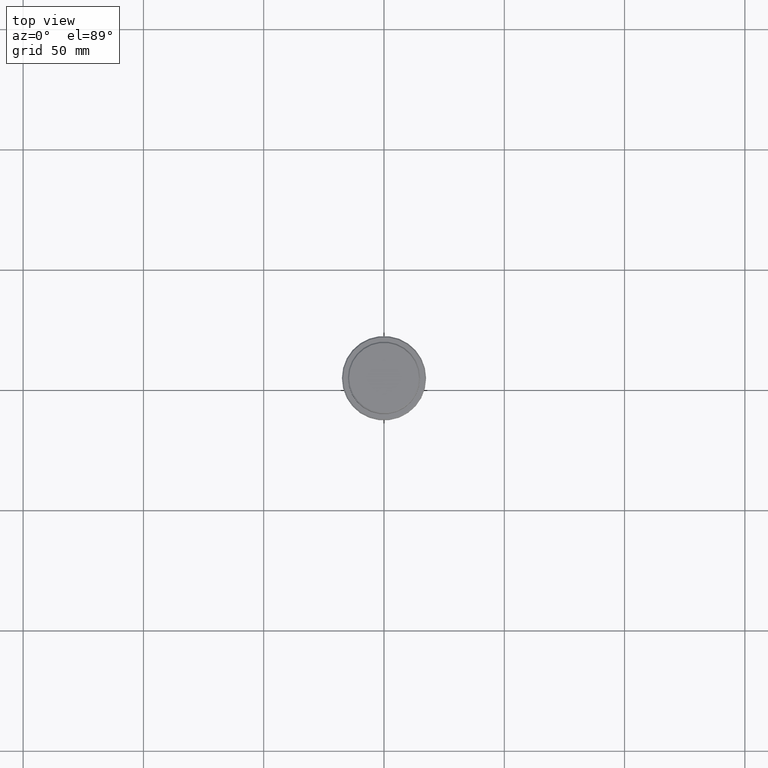
[diagram: clean part render]
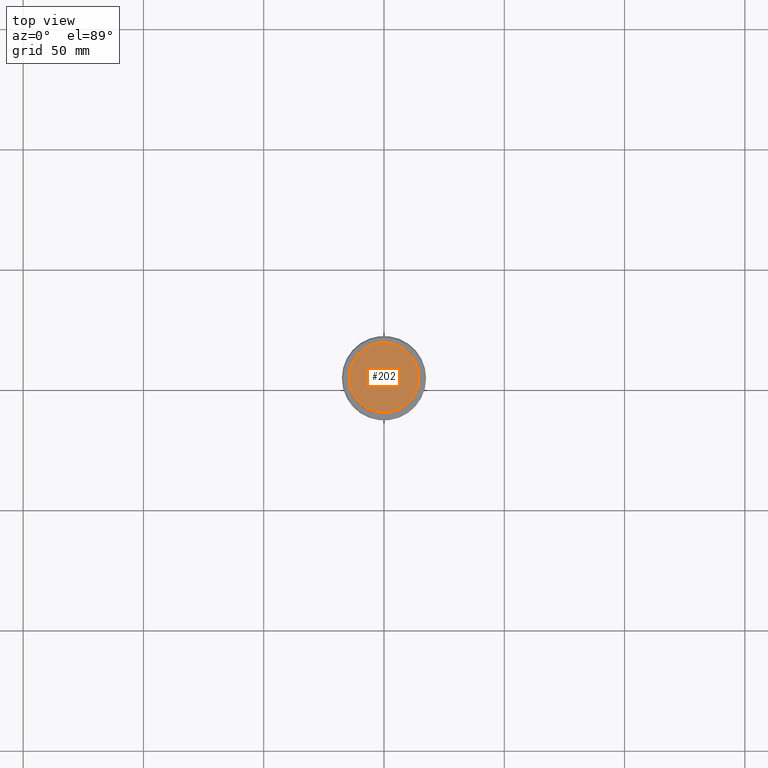
[diagram: same view with one face highlighted and labeled with its STEP entity id]
A machine part, top view. The second image highlights one B-rep face of the part: STEP entity #202.
In plain terms, the highlighted planar face has unit normal (0, -0, 1).
Its self-contained STEP definition (entity closure, byte-faithful):
#10 = CARTESIAN_POINT ( 'NONE',  ( 0.000000000000000000, 0.000000000000000000, 0.000000000000000000 ) ) ;
#24 = DIRECTION ( 'NONE',  ( 1.000000000000000000, 0.000000000000000000, 0.000000000000000000 ) ) ;
#50 = ORIENTED_EDGE ( 'NONE', *, *, #146, .T. ) ;
#77 = EDGE_LOOP ( 'NONE', ( #671, #50 ) ) ;
#146 = EDGE_CURVE ( 'NONE', #1262, #566, #274, .T. ) ;
#202 = ADVANCED_FACE ( 'NONE', ( #1118 ), #1311, .T. ) ;
#274 = CIRCLE ( 'NONE', #934, 14.49999999999998401 ) ;
#328 = DIRECTION ( 'NONE',  ( 1.000000000000000000, 0.000000000000000000, 0.000000000000000000 ) ) ;
#510 = CARTESIAN_POINT ( 'NONE',  ( 14.49999999999998401, 1.806354028742345013E-15, 0.000000000000000000 ) ) ;
#553 = CARTESIAN_POINT ( 'NONE',  ( 0.000000000000000000, 0.000000000000000000, 0.000000000000000000 ) ) ;
#558 = CARTESIAN_POINT ( 'NONE',  ( 0.000000000000000000, 0.000000000000000000, 0.000000000000000000 ) ) ;
#566 = VERTEX_POINT ( 'NONE', #1057 ) ;
#601 = EDGE_CURVE ( 'NONE', #566, #1262, #1174, .T. ) ;
#671 = ORIENTED_EDGE ( 'NONE', *, *, #601, .T. ) ;
#688 = DIRECTION ( 'NONE',  ( -0.000000000000000000, -0.000000000000000000, 1.000000000000000000 ) ) ;
#934 = AXIS2_PLACEMENT_3D ( 'NONE', #10, #688, #24 ) ;
#1057 = CARTESIAN_POINT ( 'NONE',  ( -14.49999999999998401, 0.000000000000000000, 0.000000000000000000 ) ) ;
#1118 = FACE_OUTER_BOUND ( 'NONE', #77, .T. ) ;
#1122 = AXIS2_PLACEMENT_3D ( 'NONE', #553, #1339, #1126 ) ;
#1126 = DIRECTION ( 'NONE',  ( 1.000000000000000000, 0.000000000000000000, 0.000000000000000000 ) ) ;
#1148 = AXIS2_PLACEMENT_3D ( 'NONE', #558, #1316, #328 ) ;
#1174 = CIRCLE ( 'NONE', #1148, 14.49999999999998401 ) ;
#1262 = VERTEX_POINT ( 'NONE', #510 ) ;
#1311 = PLANE ( 'NONE',  #1122 ) ;
#1316 = DIRECTION ( 'NONE',  ( -0.000000000000000000, -0.000000000000000000, 1.000000000000000000 ) ) ;
#1339 = DIRECTION ( 'NONE',  ( 0.000000000000000000, -0.000000000000000000, 1.000000000000000000 ) ) ;